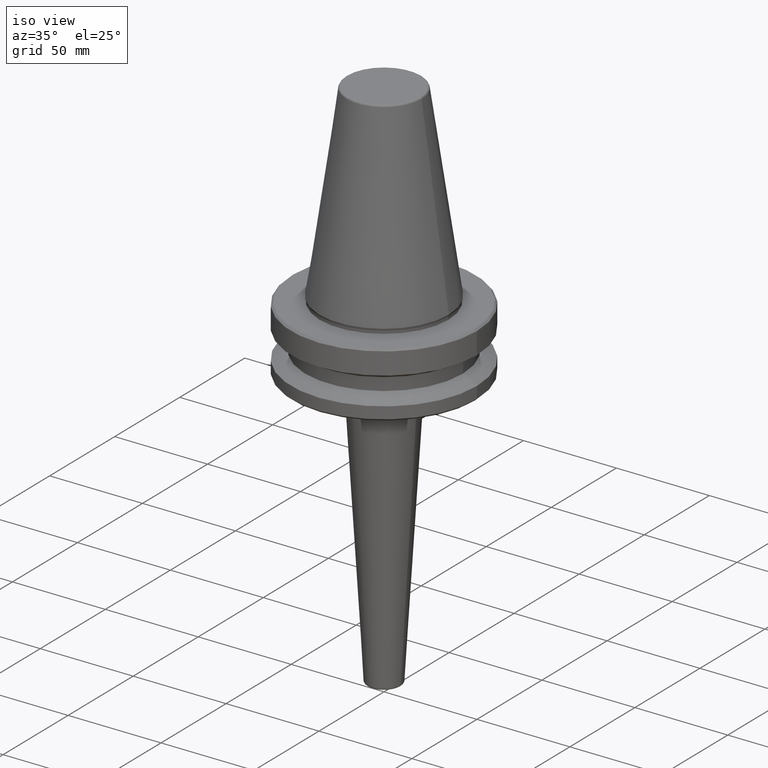
[diagram: clean part render]
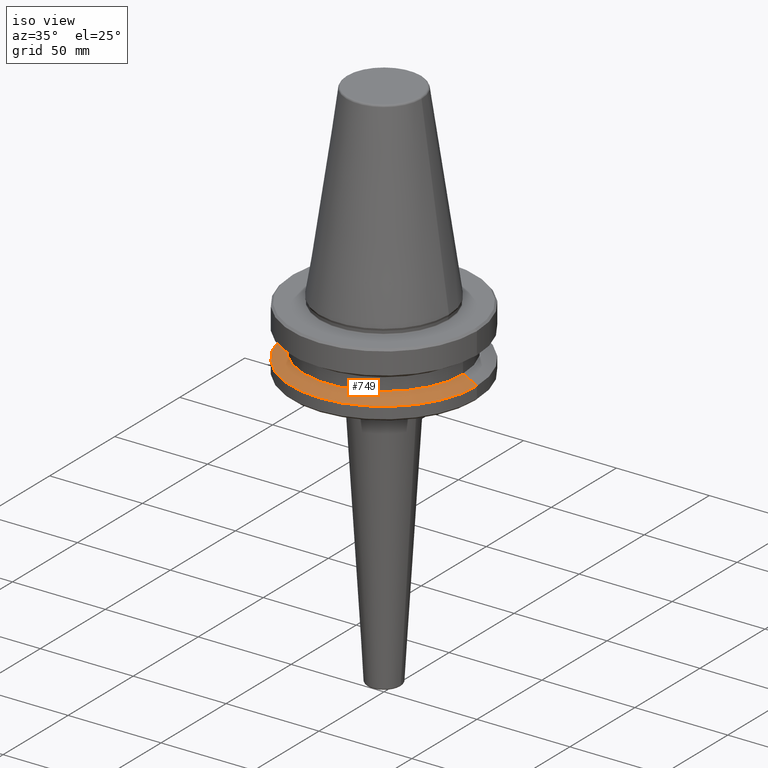
[diagram: same view with one face highlighted and labeled with its STEP entity id]
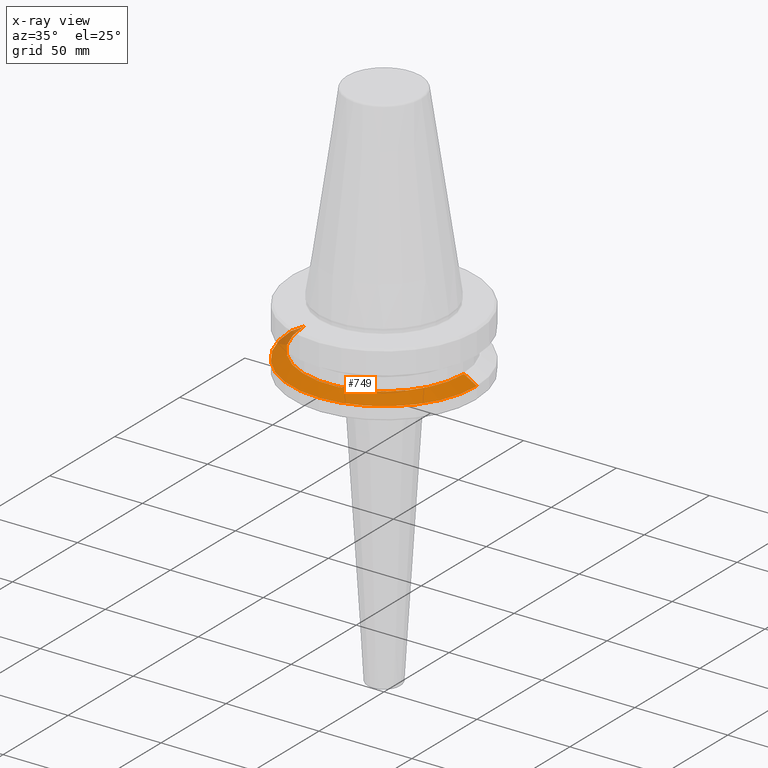
[diagram: x-ray of the same camera — body ghosted, the highlighted face saturated]
A machine part, iso view. The second image highlights one B-rep face of the part: STEP entity #749.
The next image is the same camera in x-ray: the body ghosted, the highlighted face saturated — about 4% of this face is hidden behind the body in this view.
In plain terms, the highlighted conical surface has half-angle 60 deg.
Its self-contained STEP definition (entity closure, byte-faithful):
#2 = EDGE_CURVE ( 'NONE', #414, #900, #586, .T. ) ;
#3 = EDGE_CURVE ( 'NONE', #913, #152, #542, .T. ) ;
#25 = DIRECTION ( 'NONE',  ( -1.000000000000000000, 0.0000000000000000000, 0.0000000000000000000 ) ) ;
#86 = VECTOR ( 'NONE', #451, 1000.000000000000000 ) ;
#108 = AXIS2_PLACEMENT_3D ( 'NONE', #146, #995, #498 ) ;
#115 = EDGE_CURVE ( 'NONE', #414, #913, #673, .T. ) ;
#137 = EDGE_CURVE ( 'NONE', #900, #152, #505, .T. ) ;
#145 = CARTESIAN_POINT ( 'NONE',  ( -50.00000000000000000, 0.0000000000000000000, -30.69977999677324500 ) ) ;
#146 = CARTESIAN_POINT ( 'NONE',  ( 0.0000000000000000000, 0.0000000000000000000, -26.69999999999998900 ) ) ;
#152 = VERTEX_POINT ( 'NONE', #952 ) ;
#162 = DIRECTION ( 'NONE',  ( 1.000000000000000000, 0.0000000000000000000, 0.0000000000000000000 ) ) ;
#212 = ORIENTED_EDGE ( 'NONE', *, *, #115, .T. ) ;
#231 = DIRECTION ( 'NONE',  ( -0.0000000000000000000, -0.0000000000000000000, 1.000000000000000000 ) ) ;
#243 = ORIENTED_EDGE ( 'NONE', *, *, #3, .T. ) ;
#273 = CARTESIAN_POINT ( 'NONE',  ( -43.07217782649105000, 0.0000000000000000000, -26.69999999999998900 ) ) ;
#275 = CARTESIAN_POINT ( 'NONE',  ( 50.00000000000000000, 6.123233995736766100E-015, -30.69977999677324500 ) ) ;
#280 = CARTESIAN_POINT ( 'NONE',  ( -50.00000000000000000, 6.123233995736766100E-015, -30.69977999677324500 ) ) ;
#311 = CARTESIAN_POINT ( 'NONE',  ( 0.0000000000000000000, 0.0000000000000000000, -30.69977999677324500 ) ) ;
#403 = CONICAL_SURFACE ( 'NONE', #744, 50.00000000000000000, 1.047197551196597200 ) ;
#414 = VERTEX_POINT ( 'NONE', #273 ) ;
#444 = DIRECTION ( 'NONE',  ( 0.0000000000000000000, 0.0000000000000000000, -1.000000000000000000 ) ) ;
#451 = DIRECTION ( 'NONE',  ( -0.8660254037844383700, 0.0000000000000000000, -0.5000000000000004400 ) ) ;
#465 = AXIS2_PLACEMENT_3D ( 'NONE', #311, #231, #162 ) ;
#498 = DIRECTION ( 'NONE',  ( 1.000000000000000000, 0.0000000000000000000, 0.0000000000000000000 ) ) ;
#505 = LINE ( 'NONE', #275, #725 ) ;
#512 = CARTESIAN_POINT ( 'NONE',  ( 0.0000000000000000000, 0.0000000000000000000, -30.69977999677324500 ) ) ;
#542 = CIRCLE ( 'NONE', #465, 50.00000000000000000 ) ;
#586 = CIRCLE ( 'NONE', #108, 43.07217782649105000 ) ;
#627 = FACE_OUTER_BOUND ( 'NONE', #834, .T. ) ;
#673 = LINE ( 'NONE', #145, #86 ) ;
#725 = VECTOR ( 'NONE', #946, 1000.000000000000000 ) ;
#744 = AXIS2_PLACEMENT_3D ( 'NONE', #512, #444, #25 ) ;
#749 = ADVANCED_FACE ( 'NONE', ( #627 ), #403, .T. ) ;
#834 = EDGE_LOOP ( 'NONE', ( #994, #988, #212, #243 ) ) ;
#887 = CARTESIAN_POINT ( 'NONE',  ( 43.07217782649105000, 5.699027233244276800E-015, -26.69999999999998900 ) ) ;
#900 = VERTEX_POINT ( 'NONE', #887 ) ;
#913 = VERTEX_POINT ( 'NONE', #280 ) ;
#946 = DIRECTION ( 'NONE',  ( 0.8660254037844383700, 1.060575238724906500E-016, -0.5000000000000004400 ) ) ;
#952 = CARTESIAN_POINT ( 'NONE',  ( 50.00000000000000000, 0.0000000000000000000, -30.69977999677324500 ) ) ;
#988 = ORIENTED_EDGE ( 'NONE', *, *, #2, .F. ) ;
#994 = ORIENTED_EDGE ( 'NONE', *, *, #137, .F. ) ;
#995 = DIRECTION ( 'NONE',  ( -0.0000000000000000000, -0.0000000000000000000, 1.000000000000000000 ) ) ;